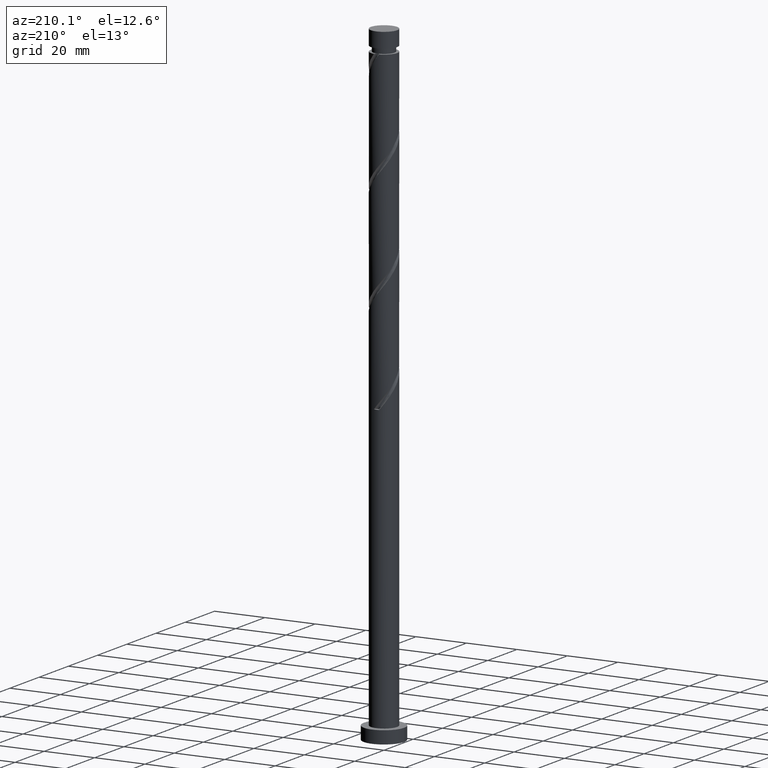
[diagram: clean part render]
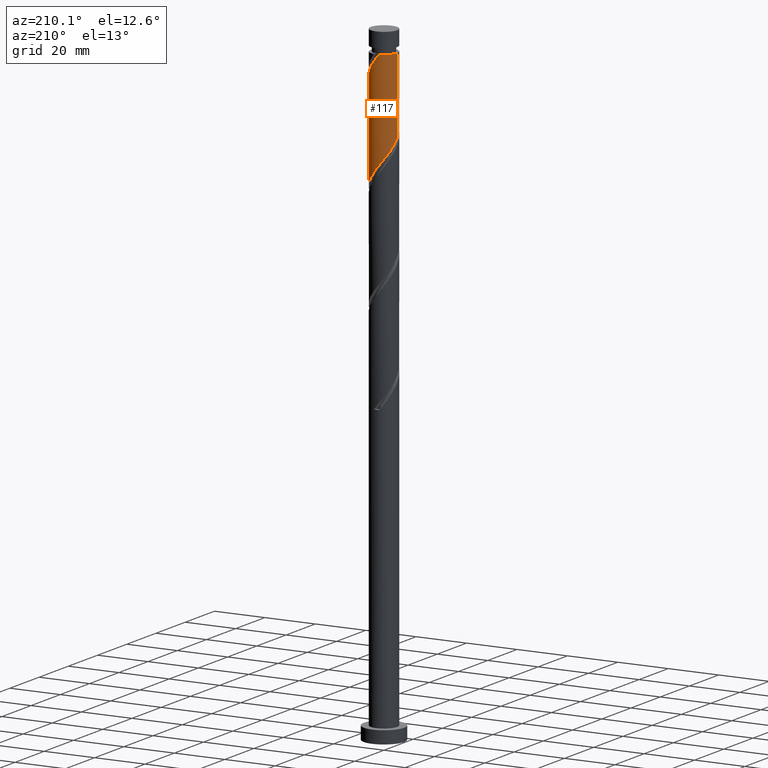
[diagram: same view with one face highlighted and labeled with its STEP entity id]
A machine part, auxiliary view. The second image highlights one B-rep face of the part: STEP entity #117.
In plain terms, the highlighted cylindrical surface (edge-blend (fillet) strip) has radius 5.25 mm, axis along (-0, -0, -1).
Its self-contained STEP definition (entity closure, byte-faithful):
#15 = CARTESIAN_POINT ( 'NONE',  ( 4.827730140806549386, 2.062891584050884575, 193.9069678589877412 ) ) ;
#50 = CARTESIAN_POINT ( 'NONE',  ( -0.4200207052834122323, 5.271854015289463291, 241.1826088846287064 ) ) ;
#73 = CARTESIAN_POINT ( 'NONE',  ( 4.981558050541681659, 1.657280721267048840, 232.3685063205262509 ) ) ;
#79 = CARTESIAN_POINT ( 'NONE',  ( -5.250000000000000000, 0.000000000000000000, 250.0000000000000000 ) ) ;
#89 = CYLINDRICAL_SURFACE ( 'NONE', #1090, 5.250000000000000000 ) ;
#117 = ADVANCED_FACE ( 'NONE', ( #671 ), #89, .T. ) ;
#165 = ORIENTED_EDGE ( 'NONE', *, *, #491, .F. ) ;
#175 = CARTESIAN_POINT ( 'NONE',  ( -3.181495836117104847, 4.224564639836851043, 205.9261986282184580 ) ) ;
#211 = CARTESIAN_POINT ( 'NONE',  ( 1.465932217448127517, 5.041184655797452230, 238.7787627307826028 ) ) ;
#230 = CARTESIAN_POINT ( 'NONE',  ( -3.640773839239173526, 3.782494659812707383, 206.7274806795005588 ) ) ;
#268 = CARTESIAN_POINT ( 'NONE',  ( -5.249999999999999112, -8.973563119972073237E-17, 212.0618128118026675 ) ) ;
#288 = CARTESIAN_POINT ( 'NONE',  ( 4.193762807166893758, 3.158299149419456775, 195.5095319615518861 ) ) ;
#290 = CARTESIAN_POINT ( 'NONE',  ( 4.577249753498583651, 2.649084152209496335, 194.7082499102697852 ) ) ;
#305 = DIRECTION ( 'NONE',  ( -1.000000000000000000, 0.000000000000000000, 0.000000000000000000 ) ) ;
#319 = CARTESIAN_POINT ( 'NONE',  ( -1.465932217448121300, 5.041184655797447789, 203.5223524743723829 ) ) ;
#339 = CARTESIAN_POINT ( 'NONE',  ( 5.250000000000007105, 0.2088089342680335692, 230.5034733089852352 ) ) ;
#348 = CARTESIAN_POINT ( 'NONE',  ( 0.000000000000000000, 0.000000000000000000, 250.0000000000000000 ) ) ;
#351 =( BOUNDED_CURVE ( )  B_SPLINE_CURVE ( 2, ( #640, #339, #484, #1054, #73, #1325, #1209, #913, #1713, #1468, #472, #761, #211, #1606, #1050, #50, #1042 ),
 .UNSPECIFIED., .F., .T. ) 
 B_SPLINE_CURVE_WITH_KNOTS ( ( 3, 2, 2, 2, 2, 2, 2, 2, 3 ),
 ( 0.6795271625973833274, 0.6826923076923077094, 0.6923076923076922906, 0.7019230769230768718, 0.7115384615384615641, 0.7211538461538460343, 0.7307692307692307265, 0.7403846153846153078, 0.7499999999999998890 ),
 .UNSPECIFIED. ) 
 CURVE ( )  GEOMETRIC_REPRESENTATION_ITEM ( )  RATIONAL_B_SPLINE_CURVE ( ( 0.9061636035682820722, 0.9069090390690708325, 0.9090909090909273793, 0.9024626128164308092, 0.9090909090909273793, 0.9024626128164308092, 0.9090909090909273793, 0.9024626128164308092, 0.9090909090909273793, 0.9024626128164308092, 0.9090909090909273793, 0.9024626128164308092, 0.9090909090909273793, 0.9024626128164308092, 0.9090909090909273793, 0.9024626128164309202, 0.9090909090909272683 ) ) 
 REPRESENTATION_ITEM ( '' )  );
#370 = CARTESIAN_POINT ( 'NONE',  ( 5.250000000000000888, 7.747176160242559442E-15, 191.2284794784694100 ) ) ;
#381 = EDGE_LOOP ( 'NONE', ( #817, #637, #1396, #165, #869 ) ) ;
#391 = CARTESIAN_POINT ( 'NONE',  ( 0.4200207052834228350, 5.271854015289456186, 201.1185063205262225 ) ) ;
#398 = CARTESIAN_POINT ( 'NONE',  ( 5.250000000000000888, 7.747176160242559442E-15, 191.2284794784694100 ) ) ;
#450 = VERTEX_POINT ( 'NONE', #1208 ) ;
#465 = CARTESIAN_POINT ( 'NONE',  ( 2.821862584929312856, 4.472801549718744774, 197.9133781153979328 ) ) ;
#472 = CARTESIAN_POINT ( 'NONE',  ( 2.629769346130896857, 4.543876449261175843, 237.1761986282184864 ) ) ;
#484 = CARTESIAN_POINT ( 'NONE',  ( 5.233416263927308520, 0.4169582814397743697, 230.7659422179621060 ) ) ;
#491 = EDGE_CURVE ( 'NONE', #1473, #1344, #1479, .T. ) ;
#500 = LINE ( 'NONE', #1338, #778 ) ;
#615 = VERTEX_POINT ( 'NONE', #1691 ) ;
#635 = DIRECTION ( 'NONE',  ( -0.000000000000000000, -0.000000000000000000, -1.000000000000000000 ) ) ;
#637 = ORIENTED_EDGE ( 'NONE', *, *, #1161, .T. ) ;
#640 = CARTESIAN_POINT ( 'NONE',  ( 5.250000000000007105, -2.602333304791885893E-15, 230.2393023933522329 ) ) ;
#656 = CARTESIAN_POINT ( 'NONE',  ( 3.316069222882259471, 4.070157848174079440, 197.1120960641159456 ) ) ;
#660 = CARTESIAN_POINT ( 'NONE',  ( 5.181127346747590678, 0.8475962581230901405, 192.3044037564236248 ) ) ;
#671 = FACE_OUTER_BOUND ( 'NONE', #381, .T. ) ;
#672 = CARTESIAN_POINT ( 'NONE',  ( -4.981558050541674554, 1.657280721267052170, 209.9326088846288201 ) ) ;
#734 = DIRECTION ( 'NONE',  ( -0.000000000000000000, -0.000000000000000000, -1.000000000000000000 ) ) ;
#739 = CARTESIAN_POINT ( 'NONE',  ( -2.078042856144675543, 4.863188258685489096, 204.3236345256543984 ) ) ;
#746 = AXIS2_PLACEMENT_3D ( 'NONE', #887, #734, #305 ) ;
#755 = CARTESIAN_POINT ( 'NONE',  ( -0.2169004367340716943, 5.245517534099430890, 201.9197883718082664 ) ) ;
#758 =( BOUNDED_CURVE ( )  B_SPLINE_CURVE ( 2, ( #1070, #1559, #863, #1476, #672, #895, #1352, #806, #230, #175, #1552, #739, #319, #1458, #755, #391, #1833, #1698, #1253, #465, #656, #1221, #288, #290, #15, #1771, #660, #1064, #398 ),
 .UNSPECIFIED., .F., .T. ) 
 B_SPLINE_CURVE_WITH_KNOTS ( ( 3, 2, 2, 2, 2, 2, 2, 2, 2, 2, 2, 2, 2, 2, 3 ),
 ( 0.4295271625973831053, 0.4326923076923077094, 0.4423076923076922906, 0.4519230769230769273, 0.4615384615384615641, 0.4711538461538461453, 0.4807692307692307820, 0.4903846153846153633, 0.5000000000000000000, 0.5096153846153845812, 0.5192307692307692735, 0.5288461538461538547, 0.5384615384615384359, 0.5480769230769231282, 0.5545271625973831053 ),
 .UNSPECIFIED. ) 
 CURVE ( )  GEOMETRIC_REPRESENTATION_ITEM ( )  RATIONAL_B_SPLINE_CURVE ( ( 0.9061636035682766321, 0.9069090390690652814, 0.9090909090909219392, 0.9024626128164254801, 0.9090909090909219392, 0.9024626128164254801, 0.9090909090909219392, 0.9024626128164254801, 0.9090909090909219392, 0.9024626128164254801, 0.9090909090909219392, 0.9024626128164254801, 0.9090909090909219392, 0.9024626128164254801, 0.9090909090909219392, 0.9024626128164254801, 0.9090909090909219392, 0.9024626128164254801, 0.9090909090909219392, 0.9024626128164254801, 0.9090909090909219392, 0.9024626128164254801, 0.9090909090909219392, 0.9024626128164254801, 0.9090909090909219392, 0.9024626128164254801, 0.9090909090909219392, 0.9046444828382822489, 0.9061636035682767432 ) ) 
 REPRESENTATION_ITEM ( '' )  );
#761 = CARTESIAN_POINT ( 'NONE',  ( 2.078042856144680428, 4.863188258685498866, 237.9774806795005873 ) ) ;
#778 = VECTOR ( 'NONE', #635, 1000.000000000000000 ) ;
#789 = DIRECTION ( 'NONE',  ( -0.000000000000000000, -0.000000000000000000, -1.000000000000000000 ) ) ;
#806 = CARTESIAN_POINT ( 'NONE',  ( -4.100051842361242649, 3.340424679788562390, 207.5287627307826313 ) ) ;
#817 = ORIENTED_EDGE ( 'NONE', *, *, #1481, .F. ) ;
#863 = CARTESIAN_POINT ( 'NONE',  ( -5.233416263927301415, 0.4169582814397780335, 211.5351729871928512 ) ) ;
#869 = ORIENTED_EDGE ( 'NONE', *, *, #959, .T. ) ;
#887 = CARTESIAN_POINT ( 'NONE',  ( 0.000000000000000000, 0.000000000000000000, 241.9838909359108357 ) ) ;
#895 = CARTESIAN_POINT ( 'NONE',  ( -4.780327738609410737, 2.262151379300639142, 209.1313268333466624 ) ) ;
#913 = CARTESIAN_POINT ( 'NONE',  ( 4.100051842361249754, 3.340424679788565054, 234.7723524743723544 ) ) ;
#959 = EDGE_CURVE ( 'NONE', #1473, #450, #1692, .T. ) ;
#1042 = CARTESIAN_POINT ( 'NONE',  ( -1.044736808961949537, 5.144999999999976481, 241.9838909359107788 ) ) ;
#1050 = CARTESIAN_POINT ( 'NONE',  ( 0.2169004367340775230, 5.245517534099437107, 240.3813268333467477 ) ) ;
#1054 = CARTESIAN_POINT ( 'NONE',  ( 5.182788362473945476, 1.052410063233463422, 231.5672242692442069 ) ) ;
#1064 = CARTESIAN_POINT ( 'NONE',  ( 5.249999999999996447, 0.4265963023194997983, 191.7681802158176652 ) ) ;
#1070 = CARTESIAN_POINT ( 'NONE',  ( -5.250000000000000000, -8.973563119972072005E-17, 212.0618128118026391 ) ) ;
#1077 = VERTEX_POINT ( 'NONE', #370 ) ;
#1090 = AXIS2_PLACEMENT_3D ( 'NONE', #348, #789, #1351 ) ;
#1109 = CARTESIAN_POINT ( 'NONE',  ( -5.249999999999984013, 0.000000000000000000, 241.9838909359108357 ) ) ;
#1161 = EDGE_CURVE ( 'NONE', #615, #1077, #500, .T. ) ;
#1208 = CARTESIAN_POINT ( 'NONE',  ( -1.044736808961949537, 5.144999999999976481, 241.9838909359107788 ) ) ;
#1209 = CARTESIAN_POINT ( 'NONE',  ( 4.440189790485334242, 2.801288029544604097, 233.9710704230903104 ) ) ;
#1221 = CARTESIAN_POINT ( 'NONE',  ( 3.810275860835201645, 3.667514146629415883, 196.3108140128338448 ) ) ;
#1253 = CARTESIAN_POINT ( 'NONE',  ( 2.245657748784901653, 4.745473767214643424, 198.7146601666800336 ) ) ;
#1325 = CARTESIAN_POINT ( 'NONE',  ( 4.780327738609418731, 2.262151379300639586, 233.1697883718082664 ) ) ;
#1338 = CARTESIAN_POINT ( 'NONE',  ( 5.250000000000000000, 6.429395695523604153E-16, 250.0000000000000000 ) ) ;
#1344 = VERTEX_POINT ( 'NONE', #268 ) ;
#1351 = DIRECTION ( 'NONE',  ( -1.000000000000000000, 0.000000000000000000, 0.000000000000000000 ) ) ;
#1352 = CARTESIAN_POINT ( 'NONE',  ( -4.440189790485325361, 2.801288029544602320, 208.3300447820646752 ) ) ;
#1396 = ORIENTED_EDGE ( 'NONE', *, *, #1764, .F. ) ;
#1458 = CARTESIAN_POINT ( 'NONE',  ( -0.8538215787515657240, 5.219181052909404706, 202.7210704230902536 ) ) ;
#1468 = CARTESIAN_POINT ( 'NONE',  ( 3.181495836117114617, 4.224564639836852820, 236.3749165769364424 ) ) ;
#1473 = VERTEX_POINT ( 'NONE', #1109 ) ;
#1476 = CARTESIAN_POINT ( 'NONE',  ( -5.182788362473937482, 1.052410063233463422, 210.7338909359108072 ) ) ;
#1479 = LINE ( 'NONE', #79, #1595 ) ;
#1481 = EDGE_CURVE ( 'NONE', #615, #450, #351, .T. ) ;
#1552 = CARTESIAN_POINT ( 'NONE',  ( -2.629769346130890195, 4.543876449261172290, 205.1249165769364708 ) ) ;
#1559 = CARTESIAN_POINT ( 'NONE',  ( -5.249999999999999112, 0.2088089342680229388, 211.7976418961696936 ) ) ;
#1595 = VECTOR ( 'NONE', #1638, 1000.000000000000000 ) ;
#1606 = CARTESIAN_POINT ( 'NONE',  ( 0.8538215787515699429, 5.219181052909412699, 239.5800447820646468 ) ) ;
#1638 = DIRECTION ( 'NONE',  ( -0.000000000000000000, -0.000000000000000000, -1.000000000000000000 ) ) ;
#1691 = CARTESIAN_POINT ( 'NONE',  ( 5.250000000000007105, -2.602333304791885893E-15, 230.2393023933522329 ) ) ;
#1692 = CIRCLE ( 'NONE', #746, 5.249999999999984013 ) ;
#1698 = CARTESIAN_POINT ( 'NONE',  ( 1.669452912640486231, 5.018145984710542074, 199.5159422179621345 ) ) ;
#1713 = CARTESIAN_POINT ( 'NONE',  ( 3.640773839239180631, 3.782494659812710491, 235.5736345256543984 ) ) ;
#1764 = EDGE_CURVE ( 'NONE', #1344, #1077, #758, .T. ) ;
#1771 = CARTESIAN_POINT ( 'NONE',  ( 5.078210528114517786, 1.476699015892268596, 193.1056858077056404 ) ) ;
#1833 = CARTESIAN_POINT ( 'NONE',  ( 1.044736808961954422, 5.145000000000001350, 200.3172242692442069 ) ) ;